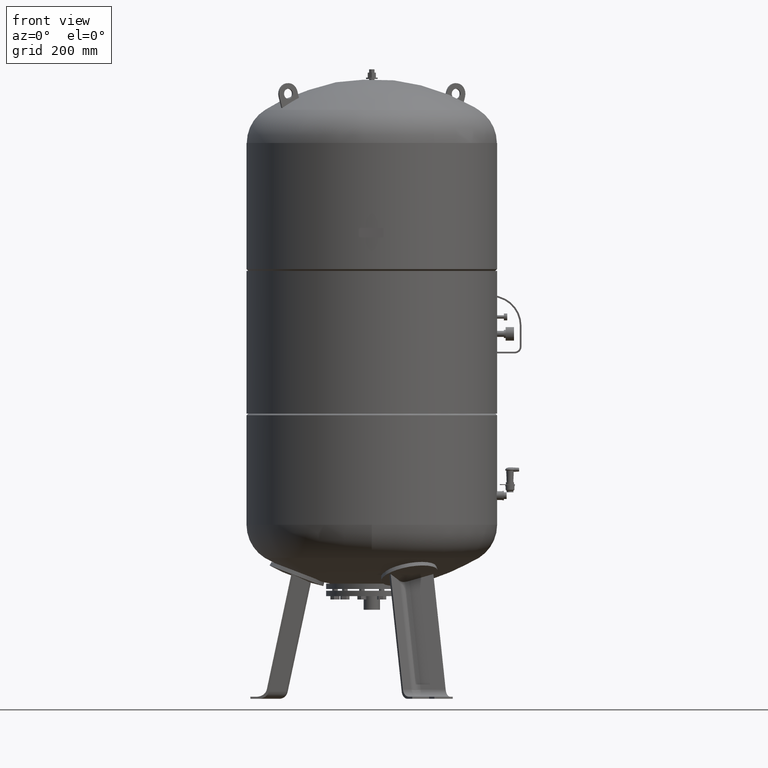
[diagram: clean part render]
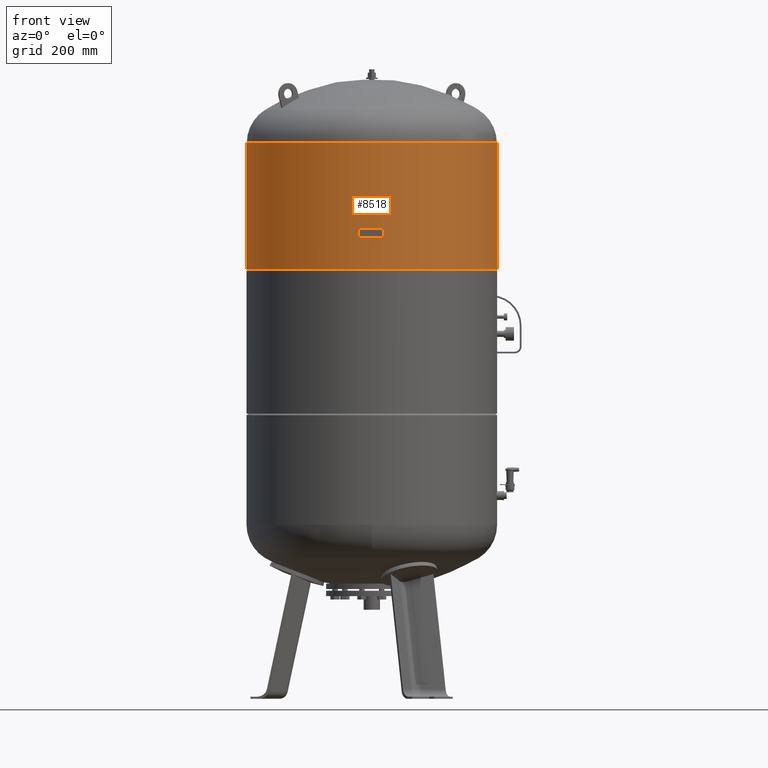
[diagram: same view with one face highlighted and labeled with its STEP entity id]
A machine part, front view. The second image highlights one B-rep face of the part: STEP entity #8518.
In plain terms, the highlighted cylindrical surface (partial cylindrical patch) has radius 370 mm, axis along (0, 0, 1).
Its self-contained STEP definition (entity closure, byte-faithful):
#8477=CARTESIAN_POINT('',(1.117467E-014,0.0,1454.833333333333500));
#8478=DIRECTION('',(2.961484E-017,0.0,1.0));
#8479=DIRECTION('',(1.0,0.0,0.0));
#8480=AXIS2_PLACEMENT_3D('',#8477,#8478,#8479);
#8481=CYLINDRICAL_SURFACE('',#8480,369.999999999999890);
#8482=CARTESIAN_POINT('',(370.0,0.0,1641.0));
#8483=VERTEX_POINT('',#8482);
#8484=CARTESIAN_POINT('',(369.999999999999720,0.0,1268.666666666666500));
#8485=VERTEX_POINT('',#8484);
#8486=CARTESIAN_POINT('',(370.0,0.0,1641.0));
#8487=DIRECTION('',(0.0,0.0,-1.0));
#8488=VECTOR('',#8487,372.333333333333480);
#8489=LINE('',#8486,#8488);
#8490=EDGE_CURVE('',#8483,#8485,#8489,.T.);
#8491=ORIENTED_EDGE('',*,*,#8490,.F.);
#8492=CARTESIAN_POINT('',(-369.999999999999890,-4.531044E-014,1641.0));
#8493=VERTEX_POINT('',#8492);
#8494=CARTESIAN_POINT('',(1.668796E-014,0.0,1641.0));
#8495=DIRECTION('',(0.0,0.0,1.0));
#8496=DIRECTION('',(1.0,0.0,0.0));
#8497=AXIS2_PLACEMENT_3D('',#8494,#8495,#8496);
#8498=CIRCLE('',#8497,370.0);
#8499=EDGE_CURVE('',#8493,#8483,#8498,.T.);
#8500=ORIENTED_EDGE('',*,*,#8499,.F.);
#8501=CARTESIAN_POINT('',(-369.999999999999720,-4.531044E-014,1268.666666666666500));
#8502=VERTEX_POINT('',#8501);
#8503=CARTESIAN_POINT('',(-369.999999999999890,-4.531044E-014,1641.0));
#8504=DIRECTION('',(0.0,0.0,-1.0));
#8505=VECTOR('',#8504,372.333333333333480);
#8506=LINE('',#8503,#8505);
#8507=EDGE_CURVE('',#8493,#8502,#8506,.T.);
#8508=ORIENTED_EDGE('',*,*,#8507,.T.);
#8509=CARTESIAN_POINT('',(5.661371E-015,0.0,1268.666666666666500));
#8510=DIRECTION('',(0.0,0.0,1.0));
#8511=DIRECTION('',(1.0,0.0,0.0));
#8512=AXIS2_PLACEMENT_3D('',#8509,#8510,#8511);
#8513=CIRCLE('',#8512,369.999999999999720);
#8514=EDGE_CURVE('',#8502,#8485,#8513,.T.);
#8515=ORIENTED_EDGE('',*,*,#8514,.T.);
#8516=EDGE_LOOP('',(#8491,#8500,#8508,#8515));
#8517=FACE_OUTER_BOUND('',#8516,.T.);
#8518=ADVANCED_FACE('',(#8517),#8481,.T.);